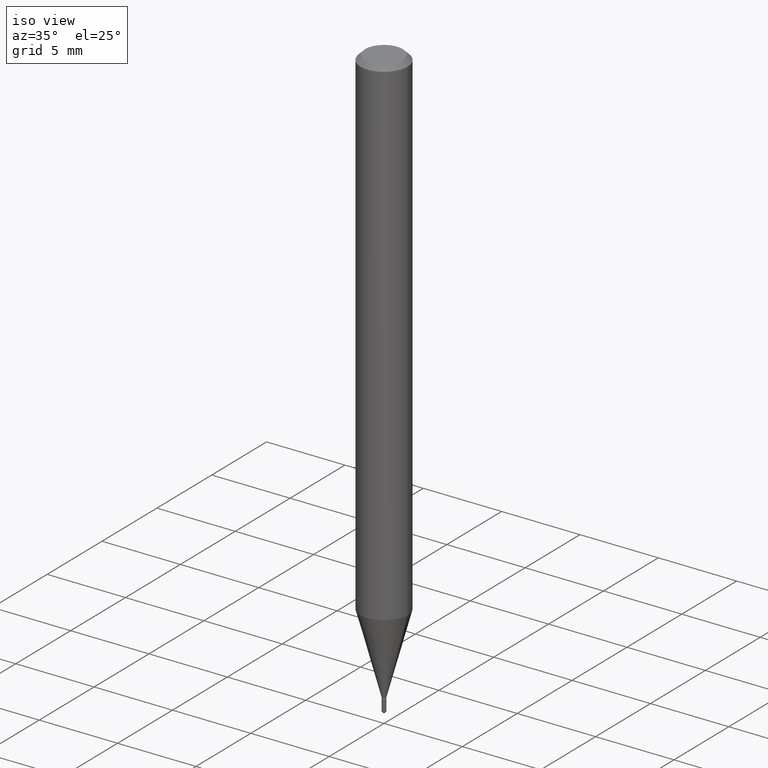
[diagram: clean part render]
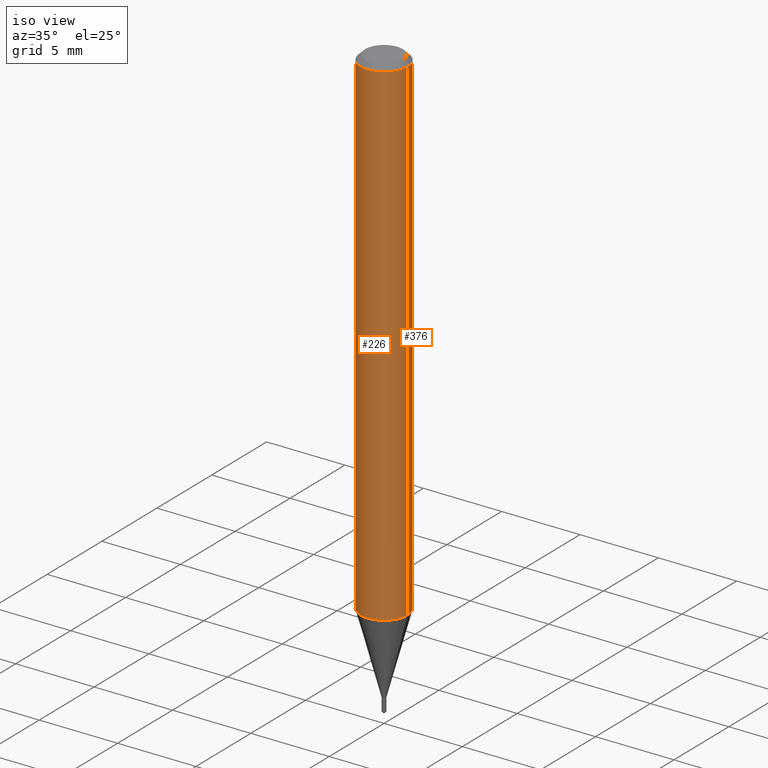
[diagram: same view with one multi-face feature highlighted, each face labeled with its STEP entity id]
A machine part, iso view. The highlighted faces form ONE feature: a constant-radius fillet chain: 2 tangent blend faces with common blend radius 1.4999 mm. The faces share edges in the B-rep.
Their STEP definitions:
[1] entity #226 (Cylinder):
#3 = DIRECTION ( 'NONE',  ( -2.445468806185136597E-29, 3.491481338843145583E-15, 1.000000000000000000 ) ) ;
#14 = VERTEX_POINT ( 'NONE', #303 ) ;
#40 = DIRECTION ( 'NONE',  ( 1.000000000000000000, -6.982962677686271444E-15, 0.000000000000000000 ) ) ;
#43 = FACE_OUTER_BOUND ( 'NONE', #109, .T. ) ;
#47 = EDGE_CURVE ( 'NONE', #14, #323, #371, .T. ) ;
#79 = CARTESIAN_POINT ( 'NONE',  ( -0.05905000000000007465, 4.195754854663396902E-16, -2.904631170795525395E-30 ) ) ;
#109 = EDGE_LOOP ( 'NONE', ( #319, #471, #259, #283 ) ) ;
#124 = CARTESIAN_POINT ( 'NONE',  ( 0.05904999999999999832, -4.535783407291118600E-16, -0.01181000000000007565 ) ) ;
#133 = DIRECTION ( 'NONE',  ( 1.000000000000000000, -6.982962677686266711E-15, 0.000000000000000000 ) ) ;
#143 = DIRECTION ( 'NONE',  ( -2.445468806185136877E-29, 3.491481338843145188E-15, 1.000000000000000000 ) ) ;
#153 = DIRECTION ( 'NONE',  ( 1.000000000000000000, -6.982962677686266711E-15, 4.876176775795936353E-29 ) ) ;
#154 = AXIS2_PLACEMENT_3D ( 'NONE', #346, #3, #153 ) ;
#157 = DIRECTION ( 'NONE',  ( -2.445468806185136597E-29, 3.491481338843145583E-15, 1.000000000000000000 ) ) ;
#169 = CARTESIAN_POINT ( 'NONE',  ( -0.05905000000000015098, -3.969598695798013952E-15, -1.257109448770144855 ) ) ;
#175 = EDGE_CURVE ( 'NONE', #338, #14, #454, .T. ) ;
#185 = EDGE_CURVE ( 'NONE', #338, #186, #426, .T. ) ;
#186 = VERTEX_POINT ( 'NONE', #196 ) ;
#196 = CARTESIAN_POINT ( 'NONE',  ( -0.05904999999999999832, -1.795628802471705305E-15, -0.01181000000000007565 ) ) ;
#226 = ADVANCED_FACE ( 'NONE', ( #43 ), #229, .T. ) ;
#229 = CYLINDRICAL_SURFACE ( 'NONE', #154, 0.05905000000000007465 ) ;
#233 = CARTESIAN_POINT ( 'NONE',  ( 3.074221942927981307E-29, -4.389174181264353445E-15, -1.257109448770144855 ) ) ;
#241 = AXIS2_PLACEMENT_3D ( 'NONE', #233, #157, #40 ) ;
#246 = CARTESIAN_POINT ( 'NONE',  ( 2.888098660104664642E-31, -4.123439461173780879E-17, -0.01181000000000007565 ) ) ;
#259 = ORIENTED_EDGE ( 'NONE', *, *, #47, .T. ) ;
#283 = ORIENTED_EDGE ( 'NONE', *, *, #440, .F. ) ;
#303 = CARTESIAN_POINT ( 'NONE',  ( 0.05905000000000015098, -4.801518127381729154E-15, -1.257109448770144855 ) ) ;
#308 = VECTOR ( 'NONE', #386, 39.37007874015748143 ) ;
#319 = ORIENTED_EDGE ( 'NONE', *, *, #185, .F. ) ;
#323 = VERTEX_POINT ( 'NONE', #124 ) ;
#338 = VERTEX_POINT ( 'NONE', #169 ) ;
#346 = CARTESIAN_POINT ( 'NONE',  ( 0.000000000000000000, 0.000000000000000000, 0.000000000000000000 ) ) ;
#371 = LINE ( 'NONE', #481, #476 ) ;
#386 = DIRECTION ( 'NONE',  ( -2.445468806185136877E-29, 3.491481338843145188E-15, 1.000000000000000000 ) ) ;
#395 = CIRCLE ( 'NONE', #487, 0.05904999999999999832 ) ;
#398 = DIRECTION ( 'NONE',  ( -2.445468806185136597E-29, 3.491481338843145583E-15, 1.000000000000000000 ) ) ;
#426 = LINE ( 'NONE', #79, #308 ) ;
#440 = EDGE_CURVE ( 'NONE', #186, #323, #395, .T. ) ;
#454 = CIRCLE ( 'NONE', #241, 0.05905000000000015098 ) ;
#471 = ORIENTED_EDGE ( 'NONE', *, *, #175, .T. ) ;
#476 = VECTOR ( 'NONE', #143, 39.37007874015748143 ) ;
#481 = CARTESIAN_POINT ( 'NONE',  ( 0.05905000000000007465, -4.123439461173745750E-16, 2.879382386107504074E-30 ) ) ;
#487 = AXIS2_PLACEMENT_3D ( 'NONE', #246, #398, #133 ) ;
[2] entity #376 (Cylinder):
#14 = VERTEX_POINT ( 'NONE', #303 ) ;
#30 = EDGE_CURVE ( 'NONE', #14, #338, #445, .T. ) ;
#47 = EDGE_CURVE ( 'NONE', #14, #323, #371, .T. ) ;
#58 = ORIENTED_EDGE ( 'NONE', *, *, #406, .F. ) ;
#66 = DIRECTION ( 'NONE',  ( 1.000000000000000000, -6.982962677686271444E-15, 0.000000000000000000 ) ) ;
#79 = CARTESIAN_POINT ( 'NONE',  ( -0.05905000000000007465, 4.195754854663396902E-16, -2.904631170795525395E-30 ) ) ;
#85 = DIRECTION ( 'NONE',  ( 1.000000000000000000, -6.982962677686266711E-15, 0.000000000000000000 ) ) ;
#88 = CIRCLE ( 'NONE', #457, 0.05904999999999999832 ) ;
#124 = CARTESIAN_POINT ( 'NONE',  ( 0.05904999999999999832, -4.535783407291118600E-16, -0.01181000000000007565 ) ) ;
#125 = CARTESIAN_POINT ( 'NONE',  ( 2.888098660104664642E-31, -4.123439461173780879E-17, -0.01181000000000007565 ) ) ;
#130 = DIRECTION ( 'NONE',  ( 1.000000000000000000, -6.982962677686266711E-15, 4.876176775795936353E-29 ) ) ;
#143 = DIRECTION ( 'NONE',  ( -2.445468806185136877E-29, 3.491481338843145188E-15, 1.000000000000000000 ) ) ;
#168 = ORIENTED_EDGE ( 'NONE', *, *, #47, .F. ) ;
#169 = CARTESIAN_POINT ( 'NONE',  ( -0.05905000000000015098, -3.969598695798013952E-15, -1.257109448770144855 ) ) ;
#171 = DIRECTION ( 'NONE',  ( -2.445468806185136597E-29, 3.491481338843145583E-15, 1.000000000000000000 ) ) ;
#185 = EDGE_CURVE ( 'NONE', #338, #186, #426, .T. ) ;
#186 = VERTEX_POINT ( 'NONE', #196 ) ;
#196 = CARTESIAN_POINT ( 'NONE',  ( -0.05904999999999999832, -1.795628802471705305E-15, -0.01181000000000007565 ) ) ;
#212 = FACE_OUTER_BOUND ( 'NONE', #393, .T. ) ;
#276 = DIRECTION ( 'NONE',  ( -2.445468806185136597E-29, 3.491481338843145583E-15, 1.000000000000000000 ) ) ;
#301 = DIRECTION ( 'NONE',  ( -2.445468806185136597E-29, 3.491481338843145583E-15, 1.000000000000000000 ) ) ;
#303 = CARTESIAN_POINT ( 'NONE',  ( 0.05905000000000015098, -4.801518127381729154E-15, -1.257109448770144855 ) ) ;
#308 = VECTOR ( 'NONE', #386, 39.37007874015748143 ) ;
#309 = AXIS2_PLACEMENT_3D ( 'NONE', #354, #171, #130 ) ;
#323 = VERTEX_POINT ( 'NONE', #124 ) ;
#338 = VERTEX_POINT ( 'NONE', #169 ) ;
#347 = ORIENTED_EDGE ( 'NONE', *, *, #30, .T. ) ;
#354 = CARTESIAN_POINT ( 'NONE',  ( 0.000000000000000000, 0.000000000000000000, 0.000000000000000000 ) ) ;
#371 = LINE ( 'NONE', #481, #476 ) ;
#376 = ADVANCED_FACE ( 'NONE', ( #212 ), #396, .T. ) ;
#386 = DIRECTION ( 'NONE',  ( -2.445468806185136877E-29, 3.491481338843145188E-15, 1.000000000000000000 ) ) ;
#393 = EDGE_LOOP ( 'NONE', ( #347, #433, #58, #168 ) ) ;
#396 = CYLINDRICAL_SURFACE ( 'NONE', #309, 0.05905000000000007465 ) ;
#406 = EDGE_CURVE ( 'NONE', #323, #186, #88, .T. ) ;
#412 = AXIS2_PLACEMENT_3D ( 'NONE', #443, #301, #66 ) ;
#426 = LINE ( 'NONE', #79, #308 ) ;
#433 = ORIENTED_EDGE ( 'NONE', *, *, #185, .T. ) ;
#443 = CARTESIAN_POINT ( 'NONE',  ( 3.074221942927981307E-29, -4.389174181264353445E-15, -1.257109448770144855 ) ) ;
#445 = CIRCLE ( 'NONE', #412, 0.05905000000000015098 ) ;
#457 = AXIS2_PLACEMENT_3D ( 'NONE', #125, #276, #85 ) ;
#476 = VECTOR ( 'NONE', #143, 39.37007874015748143 ) ;
#481 = CARTESIAN_POINT ( 'NONE',  ( 0.05905000000000007465, -4.123439461173745750E-16, 2.879382386107504074E-30 ) ) ;